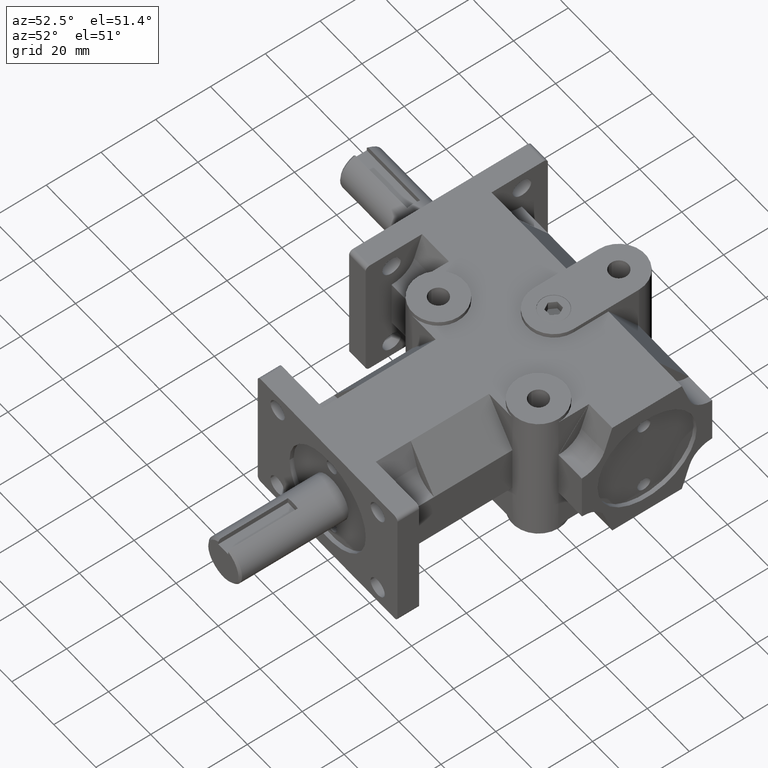
[diagram: clean part render]
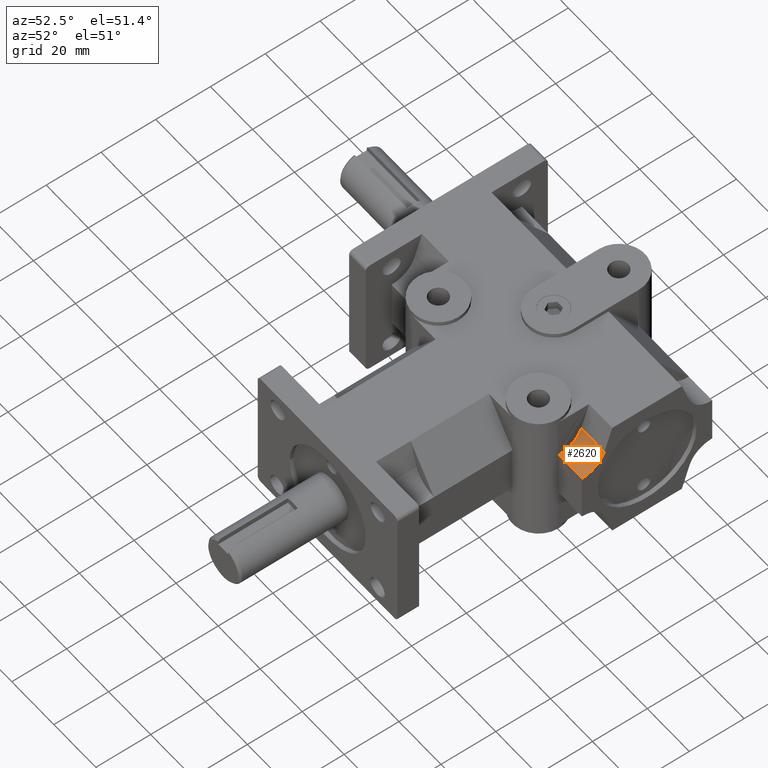
[diagram: same view with one face highlighted and labeled with its STEP entity id]
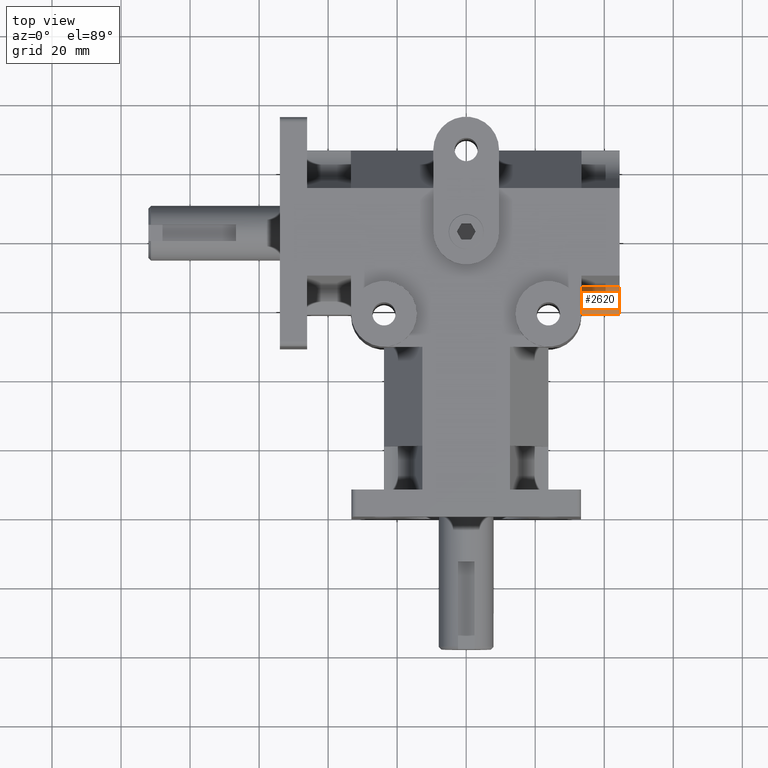
[diagram: same view with one face highlighted and labeled with its STEP entity id]
A machine part, auxiliary view. The second image highlights one B-rep face of the part: STEP entity #2620.
A second angle (top view) of the same face is appended — the face is thin or edge-on in the first view.
In plain terms, the highlighted cylindrical surface (edge-blend (fillet) strip) has radius 8.636 mm, axis along (-1, 0, 0).
Its self-contained STEP definition (entity closure, byte-faithful):
#227=FACE_OUTER_BOUND('',#403,.T.);
#403=EDGE_LOOP('',(#2108,#2109,#2110,#2111));
#604=LINE('',#4121,#869);
#645=LINE('',#4221,#910);
#869=VECTOR('',#3314,1.);
#910=VECTOR('',#3417,1.);
#1081=CIRCLE('',#2815,0.34);
#1096=CIRCLE('',#2859,0.34);
#1248=VERTEX_POINT('',#4065);
#1249=VERTEX_POINT('',#4066);
#1268=VERTEX_POINT('',#4120);
#1296=VERTEX_POINT('',#4220);
#1521=EDGE_CURVE('',#1248,#1249,#1081,.T.);
#1549=EDGE_CURVE('',#1248,#1268,#604,.T.);
#1599=EDGE_CURVE('',#1249,#1296,#645,.T.);
#1600=EDGE_CURVE('',#1268,#1296,#1096,.T.);
#2108=ORIENTED_EDGE('',*,*,#1521,.T.);
#2109=ORIENTED_EDGE('',*,*,#1599,.T.);
#2110=ORIENTED_EDGE('',*,*,#1600,.F.);
#2111=ORIENTED_EDGE('',*,*,#1549,.F.);
#2528=CYLINDRICAL_SURFACE('',#2858,0.34);
#2620=ADVANCED_FACE('',(#227),#2528,.F.);
#2815=AXIS2_PLACEMENT_3D('',#4067,#3266,#3267);
#2858=AXIS2_PLACEMENT_3D('',#4219,#3415,#3416);
#2859=AXIS2_PLACEMENT_3D('',#4222,#3418,#3419);
#3266=DIRECTION('center_axis',(1.,0.,0.));
#3267=DIRECTION('ref_axis',(0.,1.,0.));
#3314=DIRECTION('',(-1.,6.12303176911189E-17,0.));
#3415=DIRECTION('center_axis',(-1.,6.12303176911189E-17,0.));
#3416=DIRECTION('ref_axis',(6.12303176911189E-17,1.,0.));
#3417=DIRECTION('',(-1.,6.12303176911189E-17,0.));
#3418=DIRECTION('center_axis',(1.,-6.12303176911189E-17,0.));
#3419=DIRECTION('ref_axis',(6.12303176911189E-17,1.,0.));
#4065=CARTESIAN_POINT('',(1.75,2.31527148121518,0.347511295934889));
#4066=CARTESIAN_POINT('',(1.75,2.63618685695402,0.583448000330467));
#4067=CARTESIAN_POINT('Origin',(1.75,2.3125,0.6875));
#4120=CARTESIAN_POINT('',(1.315,2.31527148121518,0.347511295934889));
#4121=CARTESIAN_POINT('',(1.815,2.31527148121518,0.347511295934889));
#4219=CARTESIAN_POINT('Origin',(1.815,2.3125,0.6875));
#4220=CARTESIAN_POINT('',(1.315,2.63618685695402,0.583448000330467));
#4221=CARTESIAN_POINT('',(1.815,2.63618685695402,0.583448000330467));
#4222=CARTESIAN_POINT('Origin',(1.315,2.3125,0.6875));